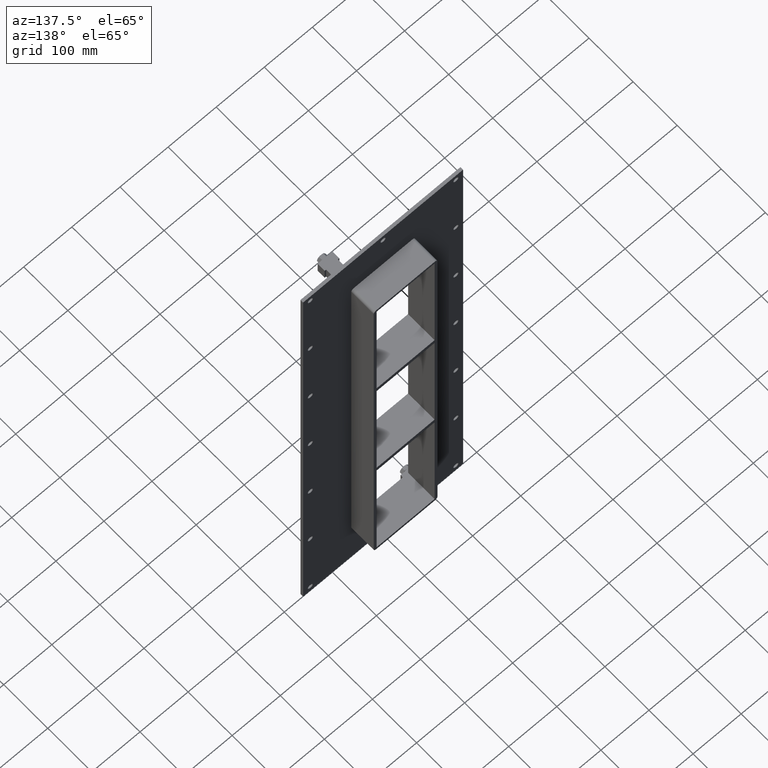
[diagram: clean part render]
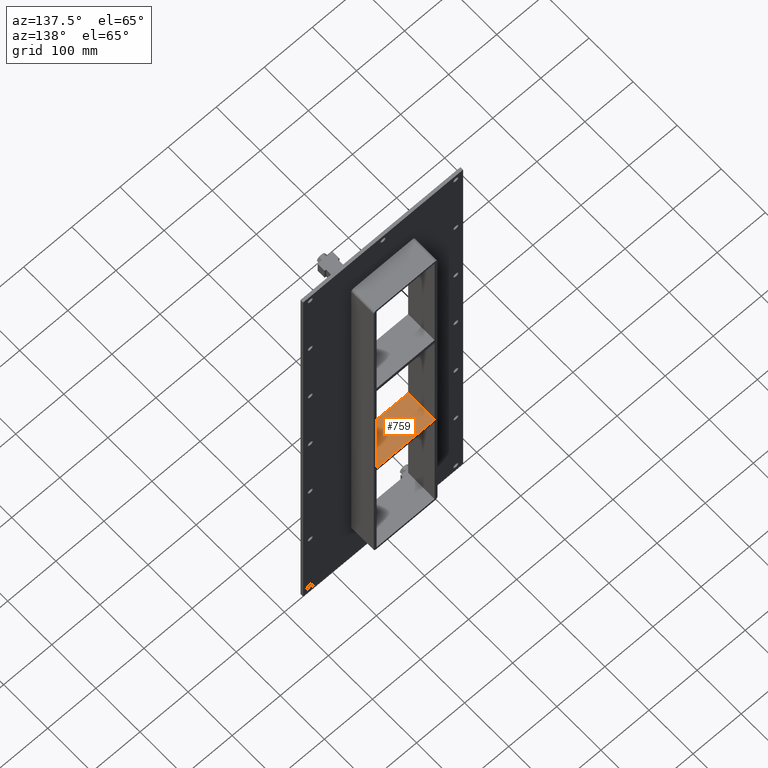
[diagram: same view with one face highlighted and labeled with its STEP entity id]
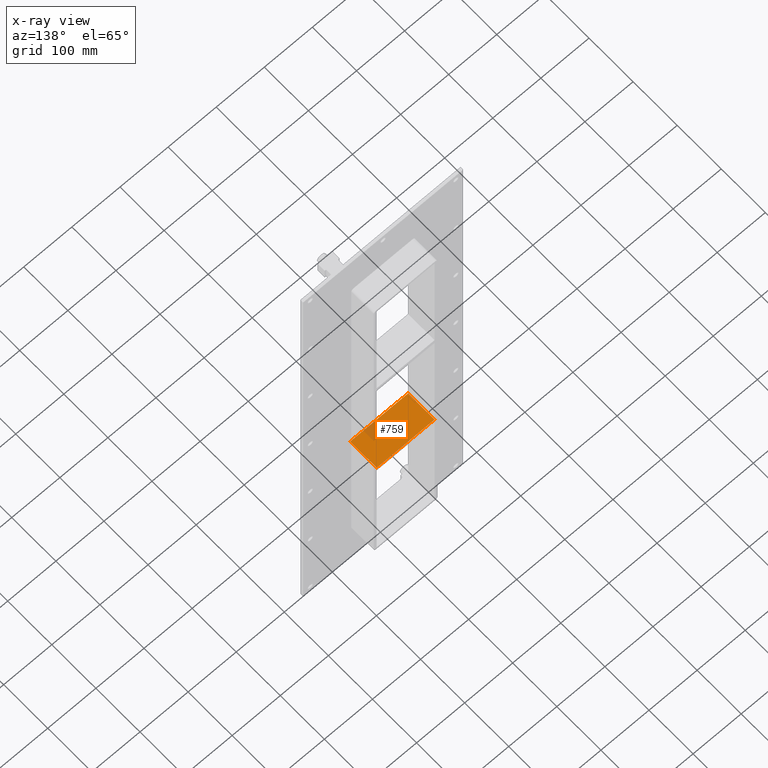
[diagram: x-ray of the same camera — body ghosted, the highlighted face saturated]
A machine part, auxiliary view. The second image highlights one B-rep face of the part: STEP entity #759.
The next image is the same camera in x-ray: the body ghosted, the highlighted face saturated — about 5% of this face is hidden behind the body in this view.
In plain terms, the highlighted planar face has unit normal (0, 0, 1).
Its self-contained STEP definition (entity closure, byte-faithful):
#633=CARTESIAN_POINT('',(60.249999999999218,57.0,-139.00000000000091));
#634=VERTEX_POINT('',#633);
#641=CARTESIAN_POINT('',(60.249999999999218,-3.0,-139.00000000000091));
#642=VERTEX_POINT('',#641);
#643=CARTESIAN_POINT('',(60.25,57.000000000000007,-139.00000000000091));
#644=DIRECTION('',(0.0,-1.0,0.0));
#645=VECTOR('',#644,60.000000000000007);
#646=LINE('',#643,#645);
#647=EDGE_CURVE('',#634,#642,#646,.T.);
#729=CARTESIAN_POINT('',(-60.249999999997605,-3.0,-139.00000000000091));
#730=DIRECTION('',(0.0,0.0,1.0));
#731=DIRECTION('',(1.0,0.0,0.0));
#732=AXIS2_PLACEMENT_3D('',#729,#730,#731);
#733=PLANE('',#732);
#734=CARTESIAN_POINT('',(-60.249999999997605,-3.0,-139.00000000000091));
#735=VERTEX_POINT('',#734);
#736=CARTESIAN_POINT('',(-60.249999999997605,-3.0,-139.00000000000091));
#737=DIRECTION('',(1.0,0.0,0.0));
#738=VECTOR('',#737,120.49999999999683);
#739=LINE('',#736,#738);
#740=EDGE_CURVE('',#735,#642,#739,.T.);
#741=ORIENTED_EDGE('',*,*,#740,.T.);
#742=ORIENTED_EDGE('',*,*,#647,.F.);
#743=CARTESIAN_POINT('',(-60.249999999997605,57.0,-139.00000000000091));
#744=VERTEX_POINT('',#743);
#745=CARTESIAN_POINT('',(-60.249999999997605,57.0,-139.00000000000091));
#746=DIRECTION('',(1.0,0.0,0.0));
#747=VECTOR('',#746,120.49999999999683);
#748=LINE('',#745,#747);
#749=EDGE_CURVE('',#744,#634,#748,.T.);
#750=ORIENTED_EDGE('',*,*,#749,.F.);
#751=CARTESIAN_POINT('',(-60.249999999999993,-3.0,-139.00000000000091));
#752=DIRECTION('',(0.0,1.0,0.0));
#753=VECTOR('',#752,60.000000000000007);
#754=LINE('',#751,#753);
#755=EDGE_CURVE('',#735,#744,#754,.T.);
#756=ORIENTED_EDGE('',*,*,#755,.F.);
#757=EDGE_LOOP('',(#741,#742,#750,#756));
#758=FACE_OUTER_BOUND('',#757,.T.);
#759=ADVANCED_FACE('',(#758),#733,.T.);